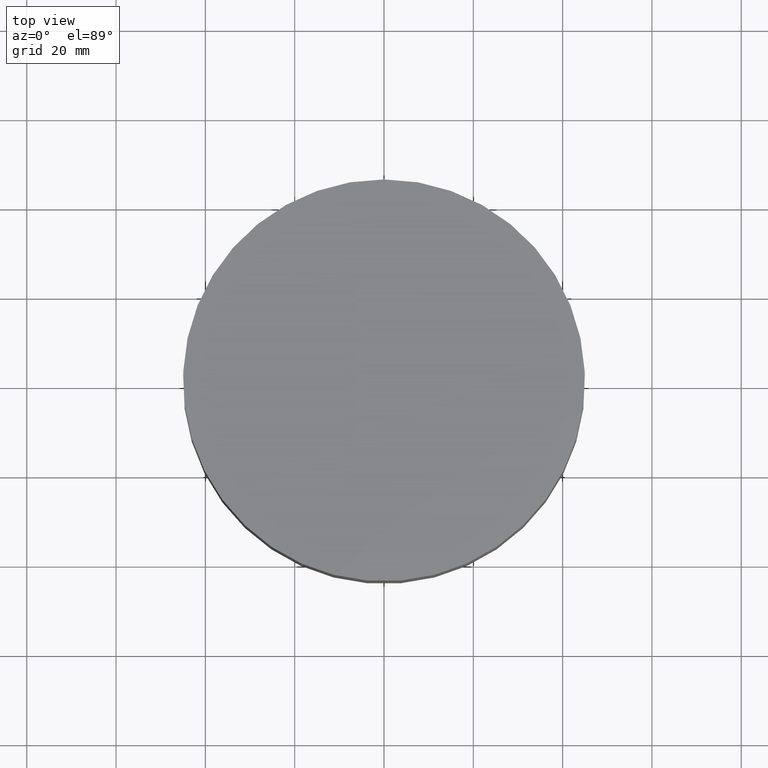
[diagram: clean part render]
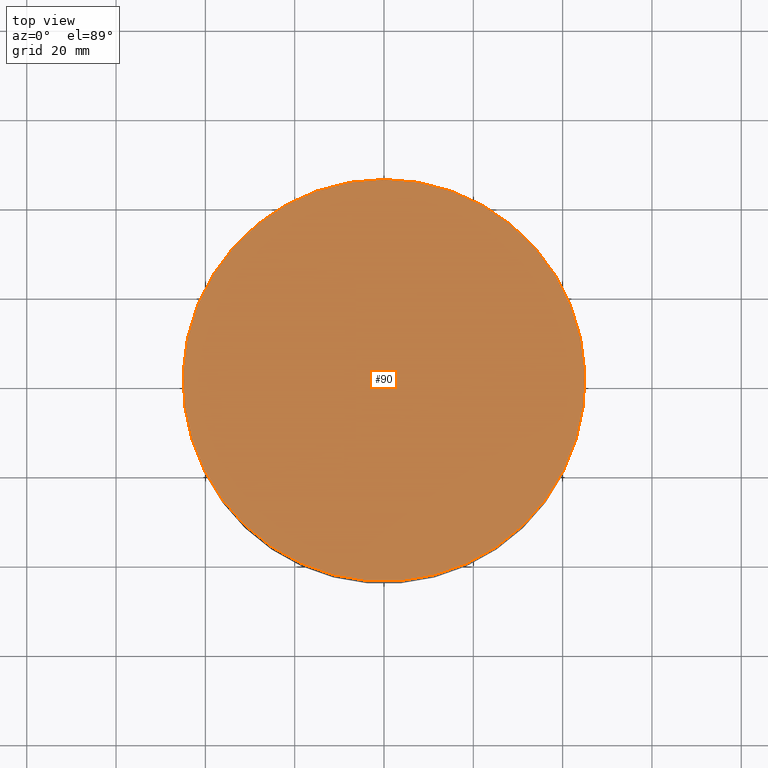
[diagram: same view with one face highlighted and labeled with its STEP entity id]
A machine part, top view. The second image highlights one B-rep face of the part: STEP entity #90.
In plain terms, the highlighted planar face has unit normal (-0, -0, 1).
Its self-contained STEP definition (entity closure, byte-faithful):
#90=ADVANCED_FACE('',(#136),#137,.T.);
#136=FACE_OUTER_BOUND('',#182,.T.);
#137=PLANE('',#183);
#182=EDGE_LOOP('',(#258));
#183=AXIS2_PLACEMENT_3D('',#259,#260,#261);
#258=ORIENTED_EDGE('',*,*,#276,.T.);
#259=CARTESIAN_POINT('',(-2.77333911991762E-031,22.5,2.75545529808154E-015));
#260=DIRECTION('',(-6.12323399573677E-017,-1.22464679914735E-016,1.0));
#261=DIRECTION('',(-1.23259516440783E-032,1.0,1.22464679914735E-016));
#276=EDGE_CURVE('',#305,#305,#306,.T.);
#305=VERTEX_POINT('',#335);
#306=CIRCLE('',#336,45.0);
#335=CARTESIAN_POINT('',(-5.54667823983524E-031,45.0,5.51091059616309E-015));
#336=AXIS2_PLACEMENT_3D('',#379,#380,#381);
#379=CARTESIAN_POINT('',(0.0,0.0,0.0));
#380=DIRECTION('',(-6.12323399573677E-017,-1.22464679914735E-016,1.0));
#381=DIRECTION('',(-1.23259516440783E-032,1.0,1.22464679914735E-016));